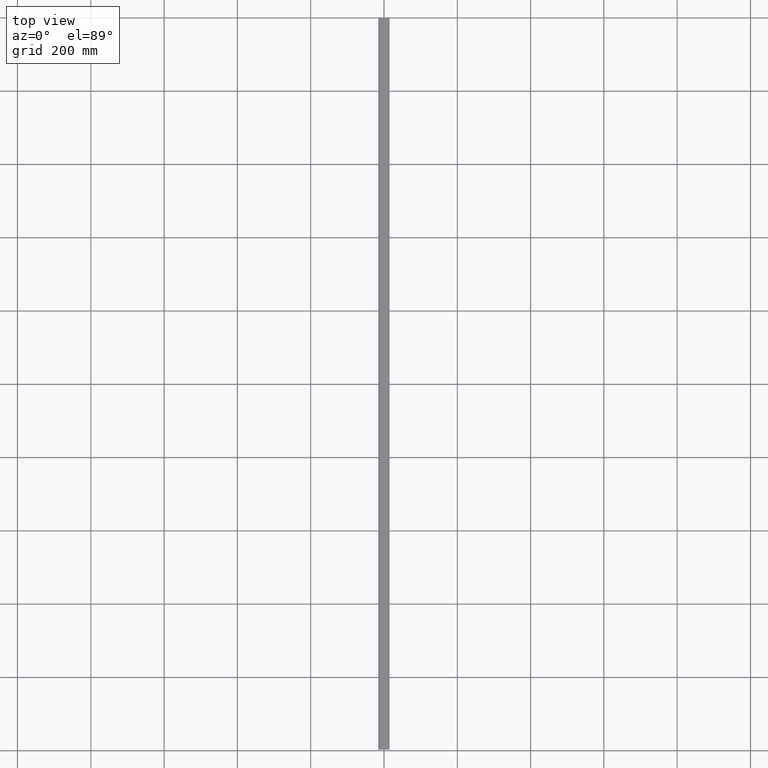
[diagram: clean part render]
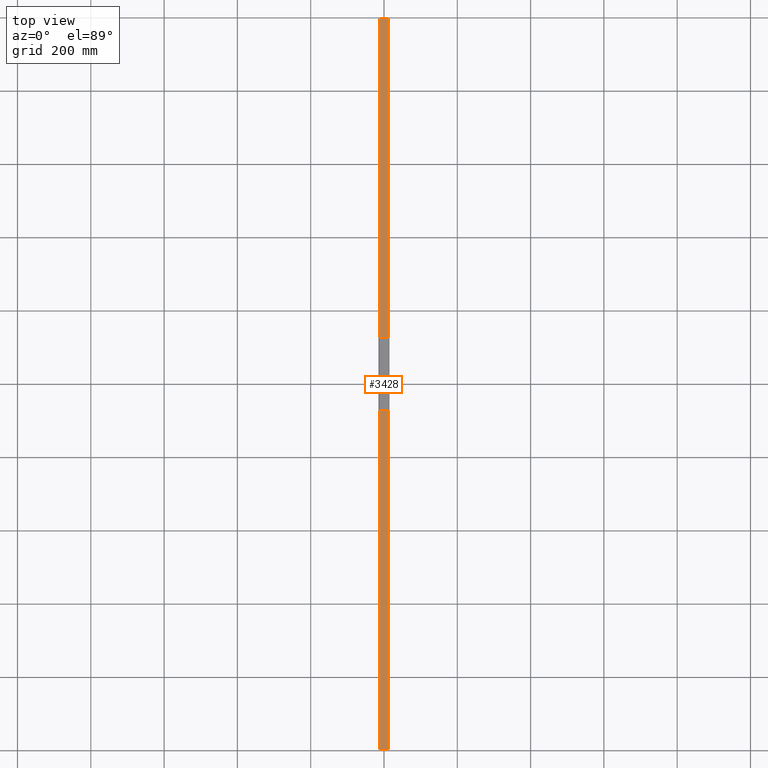
[diagram: same view with one face highlighted and labeled with its STEP entity id]
A machine part, top view. The second image highlights one B-rep face of the part: STEP entity #3428.
In plain terms, the highlighted planar face has unit normal (0, 0, -1).
Its self-contained STEP definition (entity closure, byte-faithful):
#141 = CARTESIAN_POINT ( 'NONE',  ( -9.999999999999996447, -71.90000000000001990, 24.99999999999999289 ) ) ;
#357 = VECTOR ( 'NONE', #2583, 1000.000000000000000 ) ;
#697 = FACE_OUTER_BOUND ( 'NONE', #11027, .T. ) ;
#1028 = VERTEX_POINT ( 'NONE', #5642 ) ;
#1218 = ORIENTED_EDGE ( 'NONE', *, *, #2536, .T. ) ;
#1289 = AXIS2_PLACEMENT_3D ( 'NONE', #8398, #1362, #5454 ) ;
#1362 = DIRECTION ( 'NONE',  ( -0.000000000000000000, -0.000000000000000000, 1.000000000000000000 ) ) ;
#1370 = CARTESIAN_POINT ( 'NONE',  ( -11.00000000000000000, 997.5000000000000000, 24.99999999999999289 ) ) ;
#1390 = CIRCLE ( 'NONE', #11342, 2.100000000000000089 ) ;
#1759 = LINE ( 'NONE', #1785, #2533 ) ;
#1785 = CARTESIAN_POINT ( 'NONE',  ( -11.00000000000000000, 997.5000000000000000, 24.99999999999999289 ) ) ;
#1916 = FACE_BOUND ( 'NONE', #4078, .T. ) ;
#2197 = LINE ( 'NONE', #11002, #4538 ) ;
#2214 = LINE ( 'NONE', #10640, #9491 ) ;
#2283 = ORIENTED_EDGE ( 'NONE', *, *, #7345, .F. ) ;
#2533 = VECTOR ( 'NONE', #3875, 1000.000000000000000 ) ;
#2536 = EDGE_CURVE ( 'NONE', #7176, #12126, #6430, .T. ) ;
#2583 = DIRECTION ( 'NONE',  ( 1.000000000000000000, 0.000000000000000000, 0.000000000000000000 ) ) ;
#2679 = VECTOR ( 'NONE', #10055, 1000.000000000000000 ) ;
#3066 = EDGE_CURVE ( 'NONE', #7176, #9154, #1759, .T. ) ;
#3428 = ADVANCED_FACE ( 'NONE', ( #1916, #6594, #5661, #697 ), #6700, .F. ) ;
#3822 = CARTESIAN_POINT ( 'NONE',  ( 2.100000000000000089, -82.49999999999988631, 24.99999999999999289 ) ) ;
#3867 = CARTESIAN_POINT ( 'NONE',  ( 11.00000000000000355, 997.5000000000000000, 24.99999999999999289 ) ) ;
#3875 = DIRECTION ( 'NONE',  ( 1.000000000000000000, 0.000000000000000000, 0.000000000000000000 ) ) ;
#3904 = DIRECTION ( 'NONE',  ( 0.000000000000000000, 1.000000000000000000, 0.000000000000000000 ) ) ;
#3940 = CARTESIAN_POINT ( 'NONE',  ( -11.00000000000000000, -997.5000000000000000, 24.99999999999999289 ) ) ;
#4078 = EDGE_LOOP ( 'NONE', ( #10466 ) ) ;
#4538 = VECTOR ( 'NONE', #7146, 1000.000000000000000 ) ;
#4616 = CARTESIAN_POINT ( 'NONE',  ( 2.100000000000000089, 138.5000000000001137, 24.99999999999999289 ) ) ;
#4708 = CARTESIAN_POINT ( 'NONE',  ( -9.999999999999996447, -73.09999999999988063, 24.99999999999999289 ) ) ;
#4838 = CARTESIAN_POINT ( 'NONE',  ( -11.00000000000000000, 997.5000000000000000, 24.99999999999999289 ) ) ;
#4962 = ORIENTED_EDGE ( 'NONE', *, *, #9700, .F. ) ;
#5454 = DIRECTION ( 'NONE',  ( 1.000000000000000000, 0.000000000000000000, 0.000000000000000000 ) ) ;
#5524 = VERTEX_POINT ( 'NONE', #4616 ) ;
#5642 = CARTESIAN_POINT ( 'NONE',  ( 11.00000000000000355, -997.5000000000000000, 24.99999999999999289 ) ) ;
#5649 = ORIENTED_EDGE ( 'NONE', *, *, #12284, .F. ) ;
#5661 = FACE_BOUND ( 'NONE', #12112, .T. ) ;
#5739 = DIRECTION ( 'NONE',  ( -1.000000000000000000, 0.000000000000000000, -0.000000000000000000 ) ) ;
#5754 = CARTESIAN_POINT ( 'NONE',  ( 10.00000000000000355, -71.90000000000001990, 24.99999999999999289 ) ) ;
#5916 = CARTESIAN_POINT ( 'NONE',  ( 11.00000000000000355, 997.5000000000000000, 24.99999999999999289 ) ) ;
#6173 = EDGE_CURVE ( 'NONE', #11692, #9603, #10223, .T. ) ;
#6242 = AXIS2_PLACEMENT_3D ( 'NONE', #9589, #10533, #5739 ) ;
#6289 = VECTOR ( 'NONE', #8834, 1000.000000000000000 ) ;
#6430 = LINE ( 'NONE', #1370, #12118 ) ;
#6594 = FACE_BOUND ( 'NONE', #12414, .T. ) ;
#6664 = VERTEX_POINT ( 'NONE', #4708 ) ;
#6678 = EDGE_CURVE ( 'NONE', #5524, #5524, #1390, .T. ) ;
#6700 = PLANE ( 'NONE',  #6242 ) ;
#7146 = DIRECTION ( 'NONE',  ( -1.000000000000000000, -0.000000000000000000, -0.000000000000000000 ) ) ;
#7176 = VERTEX_POINT ( 'NONE', #4838 ) ;
#7345 = EDGE_CURVE ( 'NONE', #11360, #6664, #11498, .T. ) ;
#7571 = EDGE_CURVE ( 'NONE', #12126, #1028, #2214, .T. ) ;
#7680 = LINE ( 'NONE', #5916, #6289 ) ;
#7767 = CARTESIAN_POINT ( 'NONE',  ( 0.000000000000000000, 138.5000000000001137, 24.99999999999999289 ) ) ;
#7800 = LINE ( 'NONE', #12481, #357 ) ;
#7914 = CARTESIAN_POINT ( 'NONE',  ( 10.00000000000002842, -73.09999999999988063, 24.99999999999999289 ) ) ;
#8160 = VERTEX_POINT ( 'NONE', #3822 ) ;
#8372 = ORIENTED_EDGE ( 'NONE', *, *, #6173, .F. ) ;
#8398 = CARTESIAN_POINT ( 'NONE',  ( 0.000000000000000000, -82.49999999999988631, 24.99999999999999289 ) ) ;
#8537 = ORIENTED_EDGE ( 'NONE', *, *, #10971, .F. ) ;
#8658 = DIRECTION ( 'NONE',  ( -0.000000000000000000, -0.000000000000000000, 1.000000000000000000 ) ) ;
#8795 = EDGE_CURVE ( 'NONE', #9154, #1028, #7680, .T. ) ;
#8834 = DIRECTION ( 'NONE',  ( -0.000000000000000000, -1.000000000000000000, -0.000000000000000000 ) ) ;
#9021 = VECTOR ( 'NONE', #3904, 1000.000000000000000 ) ;
#9154 = VERTEX_POINT ( 'NONE', #3867 ) ;
#9155 = CIRCLE ( 'NONE', #1289, 2.100000000000000089 ) ;
#9491 = VECTOR ( 'NONE', #10678, 1000.000000000000000 ) ;
#9518 = ORIENTED_EDGE ( 'NONE', *, *, #7571, .T. ) ;
#9589 = CARTESIAN_POINT ( 'NONE',  ( -11.00000000000000000, 997.5000000000000000, 24.99999999999999289 ) ) ;
#9601 = CARTESIAN_POINT ( 'NONE',  ( 10.00000000000000178, 126.9000000000001194, 24.99999999999999289 ) ) ;
#9603 = VERTEX_POINT ( 'NONE', #9601 ) ;
#9700 = EDGE_CURVE ( 'NONE', #9603, #11360, #2197, .T. ) ;
#10055 = DIRECTION ( 'NONE',  ( -0.000000000000000000, -1.000000000000000000, -0.000000000000000000 ) ) ;
#10169 = DIRECTION ( 'NONE',  ( -0.000000000000000000, -1.000000000000000000, -0.000000000000000000 ) ) ;
#10223 = LINE ( 'NONE', #5754, #9021 ) ;
#10466 = ORIENTED_EDGE ( 'NONE', *, *, #6678, .F. ) ;
#10533 = DIRECTION ( 'NONE',  ( 0.000000000000000000, 0.000000000000000000, -1.000000000000000000 ) ) ;
#10628 = ORIENTED_EDGE ( 'NONE', *, *, #8795, .F. ) ;
#10640 = CARTESIAN_POINT ( 'NONE',  ( -11.00000000000000000, -997.5000000000000000, 24.99999999999999289 ) ) ;
#10678 = DIRECTION ( 'NONE',  ( 1.000000000000000000, 0.000000000000000000, 0.000000000000000000 ) ) ;
#10971 = EDGE_CURVE ( 'NONE', #6664, #11692, #7800, .T. ) ;
#11002 = CARTESIAN_POINT ( 'NONE',  ( -10.00000000000002132, 126.9000000000001194, 24.99999999999999289 ) ) ;
#11027 = EDGE_LOOP ( 'NONE', ( #9518, #10628, #12034, #1218 ) ) ;
#11048 = CARTESIAN_POINT ( 'NONE',  ( -10.00000000000002132, 126.9000000000001194, 24.99999999999999289 ) ) ;
#11342 = AXIS2_PLACEMENT_3D ( 'NONE', #7767, #8658, #12516 ) ;
#11360 = VERTEX_POINT ( 'NONE', #11048 ) ;
#11498 = LINE ( 'NONE', #141, #2679 ) ;
#11692 = VERTEX_POINT ( 'NONE', #7914 ) ;
#12034 = ORIENTED_EDGE ( 'NONE', *, *, #3066, .F. ) ;
#12112 = EDGE_LOOP ( 'NONE', ( #2283, #4962, #8372, #8537 ) ) ;
#12118 = VECTOR ( 'NONE', #10169, 1000.000000000000000 ) ;
#12126 = VERTEX_POINT ( 'NONE', #3940 ) ;
#12284 = EDGE_CURVE ( 'NONE', #8160, #8160, #9155, .T. ) ;
#12414 = EDGE_LOOP ( 'NONE', ( #5649 ) ) ;
#12481 = CARTESIAN_POINT ( 'NONE',  ( -9.999999999999996447, -73.09999999999988063, 24.99999999999999289 ) ) ;
#12516 = DIRECTION ( 'NONE',  ( 1.000000000000000000, 0.000000000000000000, 0.000000000000000000 ) ) ;